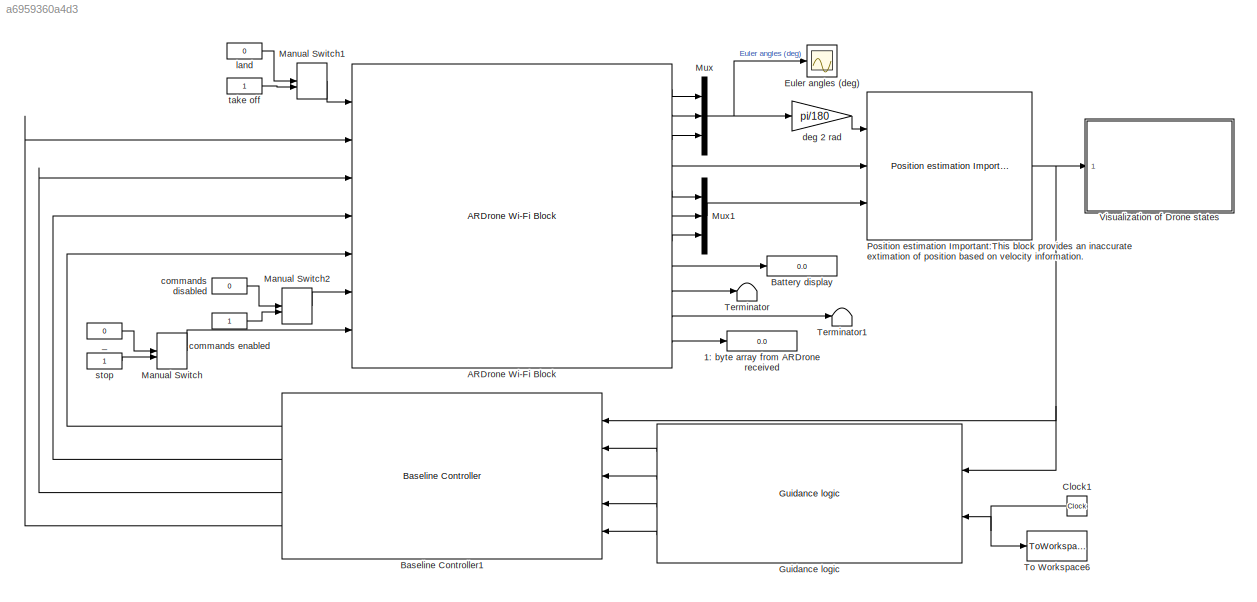
MODEL slx_a6959360a4d3
KIND model
BLOCK [Display] 1: byte array from ARDrone received 
  Decimation = 1
  Ports = [1]
BLOCK [Reference] ARDrone Wi-Fi  Block  REF=ARBlocks/ARDrone Wi-Fi  Block
  Ports = [7, 11]
  SourceBlock = ARBlocks/ARDrone Wi-Fi  Block
  SourceType = SubSystem
BLOCK [Reference] Baseline Controller1  REF=ARBlocks/Baseline Controller
  Ports = [5, 4]
  SourceBlock = ARBlocks/Baseline Controller
  SourceType = SubSystem
BLOCK [Display] Battery display
  Decimation = 1
  Ports = [1]
BLOCK [Clock] Clock1
BLOCK [Scope] Euler angles (deg)
  DataFormat = StructureWithTime
  Floating = off
  MaxDataPoints = 500000
  NumInputPorts = 1
  Ports = [1]
  SampleTime = 0
  ShowLegends = off
  YMax = 120
  YMin = -10
BLOCK [Reference] Guidance logic  REF=ARBlocks/Guidance logic
  Ports = [2, 4]
  SourceBlock = ARBlocks/Guidance logic
  SourceType = SubSystem
BLOCK [ManualSwitch] Manual Switch
BLOCK [ManualSwitch] Manual Switch1
BLOCK [ManualSwitch] Manual Switch2
BLOCK [Mux] Mux
  DisplayOption = bar
  Inputs = 3
  Ports = [3, 1]
BLOCK [Mux] Mux1
  DisplayOption = bar
  Inputs = 3
  Ports = [3, 1]
BLOCK [Reference] Position estimation Important:This block provides an inaccurate extimation of position based on  velocity information.   REF=ARBlocks/Position estimation
Important:This block provides an 
inaccurate extimation of position 
based on  velocity information. 
  Ports = [3, 1]
  SourceBlock = ARBlocks/Position estimation\nImportant:This block provides an \ninaccurate extimation of position \nbased on  velocity information.
  SourceType = SubSystem
BLOCK [Terminator] Terminator
BLOCK [Terminator] Terminator1
BLOCK [ToWorkspace] To Workspace6
  MaxDataPoints = inf
  Ports = [1]
  SampleTime = sampleTime
  VariableName = timeRT
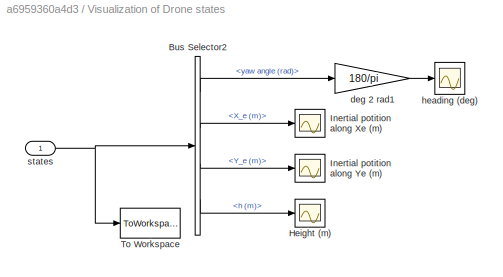
BLOCK [SubSystem] Visualization of Drone states
  FunctionWithSeparateData = off
  MaskHideContents = off
  MinAlgLoopOccurrences = off
  Opaque = off
  Ports = [1]
  PropExecContextOutsideSubsystem = off
  RTWSystemCode = Auto
  RequestExecContextInheritance = off
BLOCK [BusSelector] Visualization of Drone states/Bus Selector2
  OutputSignals = yaw angle (rad),X_e (m),Y_e (m),h (m)
  Ports = [1, 4]
BLOCK [Scope] Visualization of Drone states/Height (m)
  DataFormat = StructureWithTime
  Floating = off
  MaxDataPoints = 500000
  NumInputPorts = 1
  Ports = [1]
  SampleTime = 0
  SaveName = ScopeData5
  ShowLegends = off
  YMax = 22.5
  YMin = -22.5
BLOCK [Scope] Visualization of Drone states/Inertial potition along Xe (m)
  DataFormat = StructureWithTime
  Floating = off
  MaxDataPoints = 500000
  NumInputPorts = 1
  Ports = [1]
  SampleTime = 0
  SaveName = ScopeData3
  ShowLegends = off
  YMax = 22.5
  YMin = -22.5
BLOCK [Scope] Visualization of Drone states/Inertial potition along Ye (m)
  DataFormat = StructureWithTime
  Floating = off
  MaxDataPoints = 500000
  NumInputPorts = 1
  Ports = [1]
  SampleTime = 0
  SaveName = ScopeData4
  ShowLegends = off
  YMax = 22.5
  YMin = -22.5
BLOCK [ToWorkspace] Visualization of Drone states/To Workspace
  MaxDataPoints = inf
  Ports = [1]
  SampleTime = -1
  SaveFormat = Structure With Time
  VariableName = states
BLOCK [Gain] Visualization of Drone states/deg 2 rad1
  Gain = 180/pi
  OutDataTypeStr = Inherit: Inherit via internal rule
  ParamDataTypeStr = Inherit: Inherit via internal rule
  SaturateOnIntegerOverflow = off
BLOCK [Scope] Visualization of Drone states/heading (deg)
  DataFormat = StructureWithTime
  Floating = off
  MaxDataPoints = 500000
  NumInputPorts = 1
  Ports = [1]
  SampleTime = 0
  SaveName = ScopeData2
  ShowLegends = off
  YMax = 22.5
  YMin = -22.5
BLOCK [Inport] Visualization of Drone states/states
  IconDisplay = Port number
BLOCK [Constant] _
  Value = 0
BLOCK [Constant] commands disabled
  Value = 0
BLOCK [Constant] commands enabled
BLOCK [Gain] deg 2 rad
  Gain = pi/180
  OutDataTypeStr = Inherit: Inherit via internal rule
  ParamDataTypeStr = Inherit: Inherit via internal rule
  SaturateOnIntegerOverflow = off
BLOCK [Constant] land
  Value = 0
BLOCK [Constant] stop
BLOCK [Constant] take off
LINE ARDrone Wi-Fi  Block:1 -> Mux:1
LINE ARDrone Wi-Fi  Block:10 -> Terminator1:1
LINE ARDrone Wi-Fi  Block:11 -> 1: byte array from ARDrone received :1
LINE ARDrone Wi-Fi  Block:2 -> Mux:2
LINE ARDrone Wi-Fi  Block:3 -> Mux:3
LINE ARDrone Wi-Fi  Block:4 -> Position estimation Important:This block provides an inaccurate extimation of position based on  velocity information. :2
LINE ARDrone Wi-Fi  Block:5 -> Mux1:1
LINE ARDrone Wi-Fi  Block:6 -> Mux1:2
LINE ARDrone Wi-Fi  Block:7 -> Mux1:3
LINE ARDrone Wi-Fi  Block:8 -> Battery display:1
LINE ARDrone Wi-Fi  Block:9 -> Terminator:1
LINE Baseline Controller1:1 -> ARDrone Wi-Fi  Block:5
LINE Baseline Controller1:2 -> ARDrone Wi-Fi  Block:4
LINE Baseline Controller1:3 -> ARDrone Wi-Fi  Block:3
LINE Baseline Controller1:4 -> ARDrone Wi-Fi  Block:2
NET Clock1:1 -> Guidance logic:2, To Workspace6:1
LINE Guidance logic:1 -> Baseline Controller1:2
LINE Guidance logic:2 -> Baseline Controller1:3
LINE Guidance logic:3 -> Baseline Controller1:4
LINE Guidance logic:4 -> Baseline Controller1:5
LINE Manual Switch1:1 -> ARDrone Wi-Fi  Block:1
LINE Manual Switch2:1 -> ARDrone Wi-Fi  Block:6
LINE Manual Switch:1 -> ARDrone Wi-Fi  Block:7
LINE Mux1:1 -> Position estimation Important:This block provides an inaccurate extimation of position based on  velocity information. :3
NET Mux:1 -> Euler angles (deg):1, deg 2 rad:1
NET Position estimation Important:This block provides an inaccurate extimation of position based on  velocity information. :1 -> Baseline Controller1:1, Guidance logic:1, Visualization of Drone states:1
LINE Visualization of Drone states/Bus Selector2:1 -> Visualization of Drone states/deg 2 rad1:1
LINE Visualization of Drone states/Bus Selector2:2 -> Visualization of Drone states/Inertial potition along Xe (m):1
LINE Visualization of Drone states/Bus Selector2:3 -> Visualization of Drone states/Inertial potition along Ye (m):1
LINE Visualization of Drone states/Bus Selector2:4 -> Visualization of Drone states/Height (m):1
LINE Visualization of Drone states/deg 2 rad1:1 -> Visualization of Drone states/heading (deg):1
NET Visualization of Drone states/states:1 -> Visualization of Drone states/Bus Selector2:1, Visualization of Drone states/To Workspace:1
LINE _:1 -> Manual Switch:1
LINE commands disabled:1 -> Manual Switch2:1
LINE commands enabled:1 -> Manual Switch2:2
LINE deg 2 rad:1 -> Position estimation Important:This block provides an inaccurate extimation of position based on  velocity information. :1
LINE land:1 -> Manual Switch1:1
LINE stop:1 -> Manual Switch:2
LINE take off:1 -> Manual Switch1:2
note: NET lines group one-source signal fan-out (src -> all destinations, sorted); 1:1 wires keep LINE
